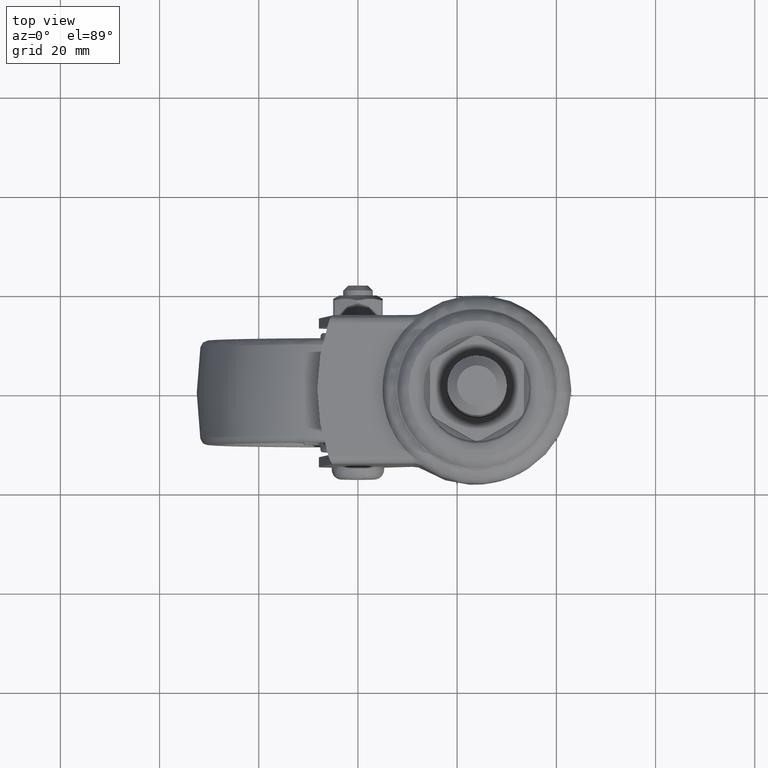
[diagram: clean part render]
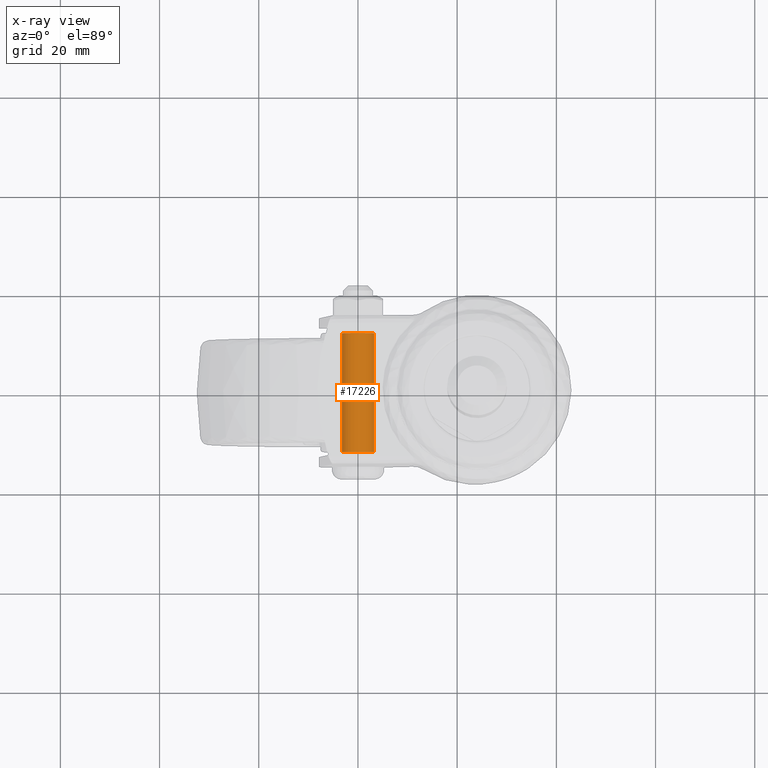
[diagram: x-ray — body ghosted, one internal face saturated and labeled with its STEP entity id]
A machine part, top view, then the same camera in x-ray: the body is ghosted and one INTERNAL B-rep face — a face not visible from any outside direction — is saturated and labeled: STEP entity #17226.
In plain terms, the highlighted face is a freeform B-spline surface patch.
Its self-contained STEP definition (entity closure, byte-faithful):
#17093=CARTESIAN_POINT('',(0.0,-12.0,3.250000000000002));
#17094=VERTEX_POINT('',#17093);
#17095=CARTESIAN_POINT('',(-3.243938094849651,-12.0,0.198407753838439));
#17096=VERTEX_POINT('',#17095);
#17097=CARTESIAN_POINT('',(0.0,-12.0,3.250000000000002));
#17098=CARTESIAN_POINT('',(-3.057294717112888,-12.0,3.250000000000002));
#17099=CARTESIAN_POINT('',(-3.243938094849651,-11.999999999999995,0.198407753838438));
#17107=(BOUNDED_CURVE()B_SPLINE_CURVE(2,(#17097,#17098,#17099),.UNSPECIFIED.,.F.,.U.)B_SPLINE_CURVE_WITH_KNOTS((3,3),(0.500000000000000,0.739332962223344),.UNSPECIFIED.)CURVE()GEOMETRIC_REPRESENTATION_ITEM()RATIONAL_B_SPLINE_CURVE((1.0,0.719603993304986,0.976072041633285))REPRESENTATION_ITEM(''));
#17108=EDGE_CURVE('',#17094,#17096,#17107,.T.);
#17110=CARTESIAN_POINT('',(3.243938094849651,-12.0,-0.198407753838436));
#17111=VERTEX_POINT('',#17110);
#17112=CARTESIAN_POINT('',(3.243938094849651,-12.000000000000007,-0.198407753838435));
#17113=CARTESIAN_POINT('',(3.250000000000000,-12.000000000000002,-0.099296480895979));
#17114=CARTESIAN_POINT('',(3.250000000000000,-12.0,1.628608E-015));
#17115=CARTESIAN_POINT('',(3.250000000000000,-12.0,3.250000000000003));
#17116=CARTESIAN_POINT('',(0.0,-12.0,3.250000000000002));
#17124=(BOUNDED_CURVE()B_SPLINE_CURVE(2,(#17112,#17113,#17114,#17115,#17116),.UNSPECIFIED.,.F.,.U.)B_SPLINE_CURVE_WITH_KNOTS((3,2,3),(0.239332962223343,0.250000000000000,0.500000000000000),.UNSPECIFIED.)CURVE()GEOMETRIC_REPRESENTATION_ITEM()RATIONAL_B_SPLINE_CURVE((0.976072041633285,0.987502787881562,1.0,0.707106781186547,1.0))REPRESENTATION_ITEM(''));
#17125=EDGE_CURVE('',#17111,#17094,#17124,.T.);
#17160=CARTESIAN_POINT('',(3.243938094871067,12.600000000000000,-0.198407753488283));
#17161=CARTESIAN_POINT('',(3.442345848359353,12.600000000000005,3.045530341382783));
#17162=CARTESIAN_POINT('',(0.198407753488285,12.600000000000000,3.243938094871068));
#17163=CARTESIAN_POINT('',(-3.045530341382781,12.600000000000005,3.442345848359353));
#17164=CARTESIAN_POINT('',(-3.243938094871067,12.600000000000000,0.198407753488287));
#17165=CARTESIAN_POINT('',(3.243938094871067,-12.615000000000000,-0.198407753488283));
#17166=CARTESIAN_POINT('',(3.442345848359353,-12.615000000000002,3.045530341382783));
#17167=CARTESIAN_POINT('',(0.198407753488285,-12.615000000000000,3.243938094871068));
#17168=CARTESIAN_POINT('',(-3.045530341382781,-12.615000000000002,3.442345848359353));
#17169=CARTESIAN_POINT('',(-3.243938094871067,-12.615000000000000,0.198407753488287));
#17177=(BOUNDED_SURFACE()B_SPLINE_SURFACE(2,1,((#17160,#17165),(#17161,#17166),(#17162,#17167),(#17163,#17168),(#17164,#17169)),.UNSPECIFIED.,.F.,.F.,.U.)B_SPLINE_SURFACE_WITH_KNOTS((3,2,3),(2,2),(0.0,5.384776310850235,10.769552621700470),(0.0,25.215000000000011),.UNSPECIFIED.)GEOMETRIC_REPRESENTATION_ITEM()RATIONAL_B_SPLINE_SURFACE(((1.0,1.0),(0.707106781186548,0.707106781186548),(1.0,1.0),(0.707106781186548,0.707106781186548),(1.0,1.0)))REPRESENTATION_ITEM('')SURFACE());
#17178=ORIENTED_EDGE('',*,*,#17125,.T.);
#17179=ORIENTED_EDGE('',*,*,#17108,.T.);
#17180=CARTESIAN_POINT('',(-3.243938094849651,12.0,0.198407753838439));
#17181=VERTEX_POINT('',#17180);
#17182=CARTESIAN_POINT('',(-3.243938094849651,12.0,0.198407753838439));
#17183=CARTESIAN_POINT('',(-3.243938094849651,-12.0,0.198407753838439));
#17184=QUASI_UNIFORM_CURVE('',1,(#17182,#17183),.UNSPECIFIED.,.F.,.U.);
#17185=EDGE_CURVE('',#17181,#17096,#17184,.T.);
#17186=ORIENTED_EDGE('',*,*,#17185,.F.);
#17187=CARTESIAN_POINT('',(0.0,12.0,3.250000000000002));
#17188=VERTEX_POINT('',#17187);
#17189=CARTESIAN_POINT('',(0.0,12.0,3.250000000000002));
#17190=CARTESIAN_POINT('',(-3.057294717112888,12.0,3.250000000000002));
#17191=CARTESIAN_POINT('',(-3.243938094849651,11.999999999999995,0.198407753838438));
#17199=(BOUNDED_CURVE()B_SPLINE_CURVE(2,(#17189,#17190,#17191),.UNSPECIFIED.,.F.,.U.)B_SPLINE_CURVE_WITH_KNOTS((3,3),(0.500000000000000,0.739332962223344),.UNSPECIFIED.)CURVE()GEOMETRIC_REPRESENTATION_ITEM()RATIONAL_B_SPLINE_CURVE((1.0,0.719603993304986,0.976072041633285))REPRESENTATION_ITEM(''));
#17200=EDGE_CURVE('',#17188,#17181,#17199,.T.);
#17201=ORIENTED_EDGE('',*,*,#17200,.F.);
#17202=CARTESIAN_POINT('',(3.243938094849651,12.0,-0.198407753838436));
#17203=VERTEX_POINT('',#17202);
#17204=CARTESIAN_POINT('',(3.243938094849651,12.000000000000007,-0.198407753838435));
#17205=CARTESIAN_POINT('',(3.250000000000000,12.000000000000002,-0.099296480895979));
#17206=CARTESIAN_POINT('',(3.250000000000000,12.0,1.628608E-015));
#17207=CARTESIAN_POINT('',(3.250000000000000,12.0,3.250000000000003));
#17208=CARTESIAN_POINT('',(0.0,12.0,3.250000000000002));
#17216=(BOUNDED_CURVE()B_SPLINE_CURVE(2,(#17204,#17205,#17206,#17207,#17208),.UNSPECIFIED.,.F.,.U.)B_SPLINE_CURVE_WITH_KNOTS((3,2,3),(0.239332962223343,0.250000000000000,0.500000000000000),.UNSPECIFIED.)CURVE()GEOMETRIC_REPRESENTATION_ITEM()RATIONAL_B_SPLINE_CURVE((0.976072041633285,0.987502787881562,1.0,0.707106781186547,1.0))REPRESENTATION_ITEM(''));
#17217=EDGE_CURVE('',#17203,#17188,#17216,.T.);
#17218=ORIENTED_EDGE('',*,*,#17217,.F.);
#17219=CARTESIAN_POINT('',(3.243938094849651,12.0,-0.198407753838436));
#17220=CARTESIAN_POINT('',(3.243938094849651,-12.0,-0.198407753838436));
#17221=QUASI_UNIFORM_CURVE('',1,(#17219,#17220),.UNSPECIFIED.,.F.,.U.);
#17222=EDGE_CURVE('',#17203,#17111,#17221,.T.);
#17223=ORIENTED_EDGE('',*,*,#17222,.T.);
#17224=EDGE_LOOP('',(#17178,#17179,#17186,#17201,#17218,#17223));
#17225=FACE_OUTER_BOUND('',#17224,.T.);
#17226=ADVANCED_FACE('',(#17225),#17177,.F.);